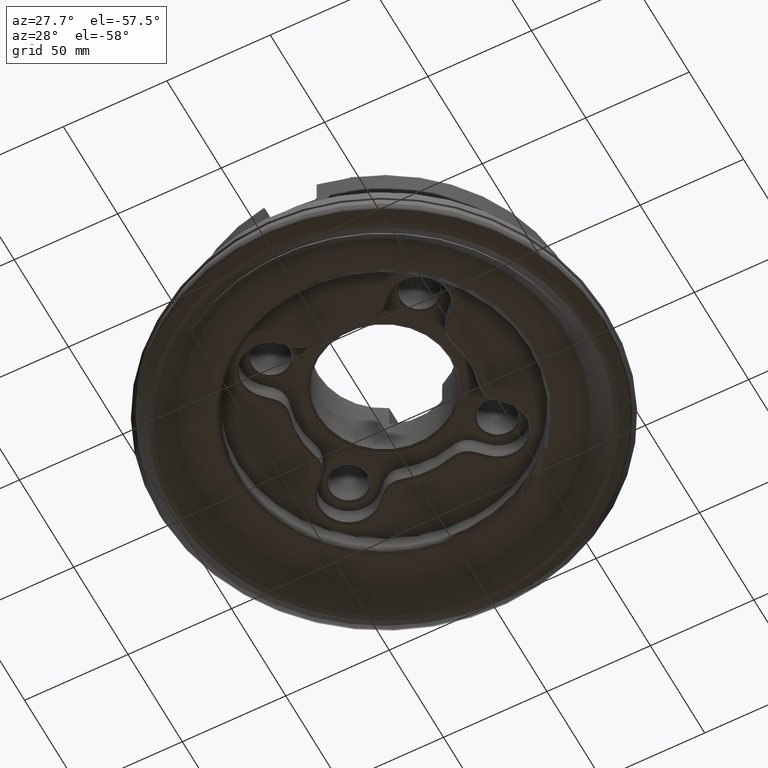
[diagram: clean part render]
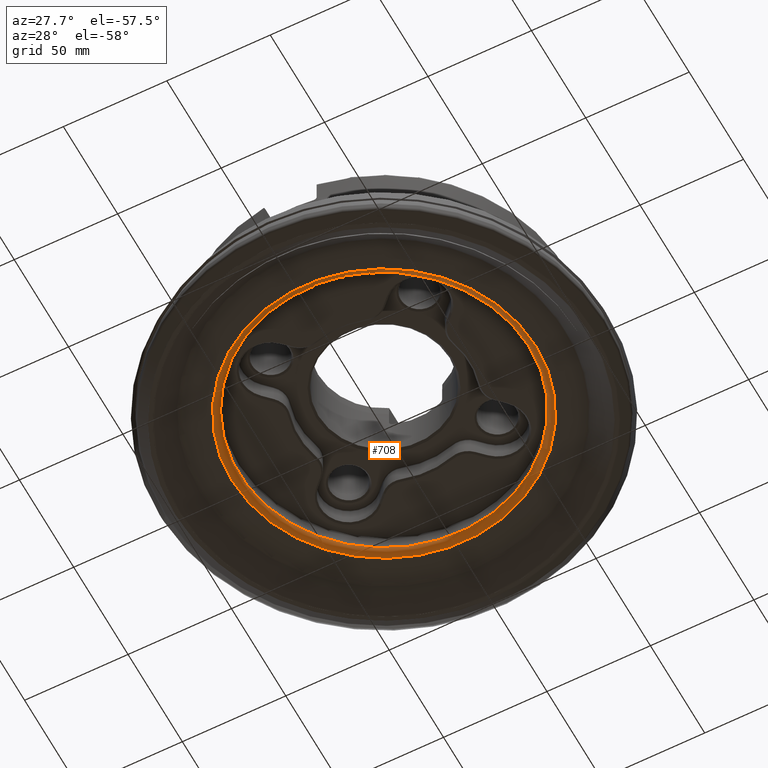
[diagram: same view with one face highlighted and labeled with its STEP entity id]
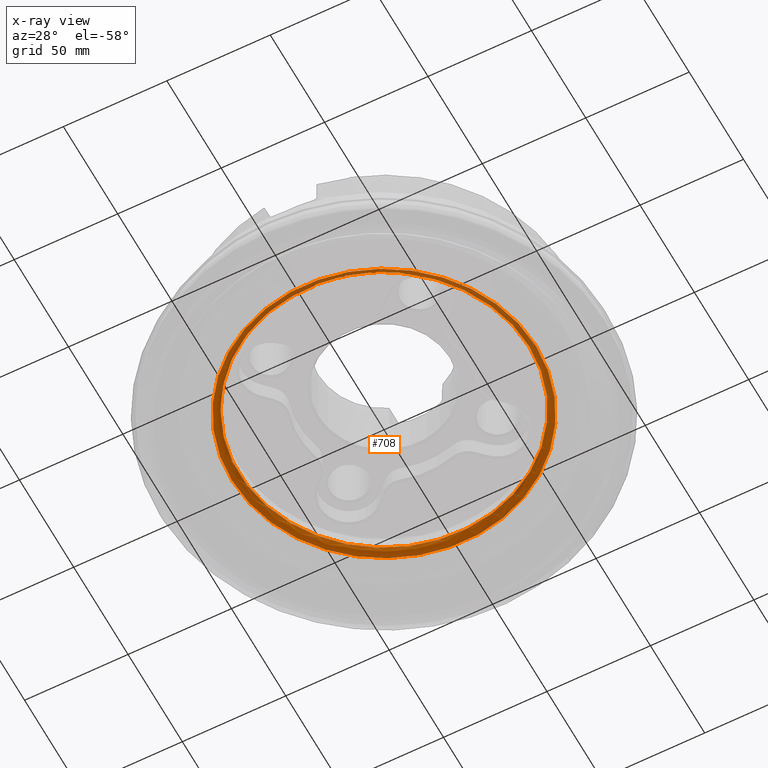
[diagram: x-ray of the same camera — body ghosted, the highlighted face saturated]
A machine part, auxiliary view. The second image highlights one B-rep face of the part: STEP entity #708.
The next image is the same camera in x-ray: the body ghosted, the highlighted face saturated — about 0% of this face is hidden behind the body in this view.
In plain terms, the highlighted toroidal blend (fillet) surface has major radius 73 mm and minor (blend) radius 3 mm.
Its self-contained STEP definition (entity closure, byte-faithful):
#201=TOROIDAL_SURFACE('',#2871,73.,3.);
#708=ADVANCED_FACE('',(#864,#865),#201,.T.);
#864=FACE_BOUND('',#1102,.T.);
#865=FACE_BOUND('',#1103,.T.);
#1102=EDGE_LOOP('',(#1706));
#1103=EDGE_LOOP('',(#1707));
#1706=ORIENTED_EDGE('',*,*,#2285,.F.);
#1707=ORIENTED_EDGE('',*,*,#2098,.F.);
#1869=VERTEX_POINT('',#4259);
#1978=VERTEX_POINT('',#4709);
#2098=EDGE_CURVE('',#1869,#1869,#2371,.T.);
#2285=EDGE_CURVE('',#1978,#1978,#2470,.T.);
#2371=CIRCLE('',#2662,70.);
#2470=CIRCLE('',#2849,73.4542413182045);
#2662=AXIS2_PLACEMENT_3D('',#4258,#3062,#3063);
#2849=AXIS2_PLACEMENT_3D('',#4708,#3520,#3521);
#2871=AXIS2_PLACEMENT_3D('',#4745,#3568,#3569);
#3062=DIRECTION('',(-1.17145536458252E-15,0.,-1.));
#3063=DIRECTION('',(1.,0.,-1.16474290529871E-15));
#3520=DIRECTION('',(1.17145536458252E-15,0.,1.));
#3521=DIRECTION('',(1.,0.,-1.18081913640764E-15));
#3568=DIRECTION('',(1.17145536458252E-15,0.,1.));
#3569=DIRECTION('',(1.,0.,-1.16409075361602E-15));
#4258=CARTESIAN_POINT('',(1.31156166228962E-14,0.,11.1960020154675));
#4259=CARTESIAN_POINT('',(70.,0.,11.1960020154674));
#4708=CARTESIAN_POINT('',(9.64176951958794E-15,0.,8.23059060643255));
#4709=CARTESIAN_POINT('',(73.4542413182045,0.,8.23059060643246));
#4745=CARTESIAN_POINT('',(1.31156166228962E-14,0.,11.1960020154675));